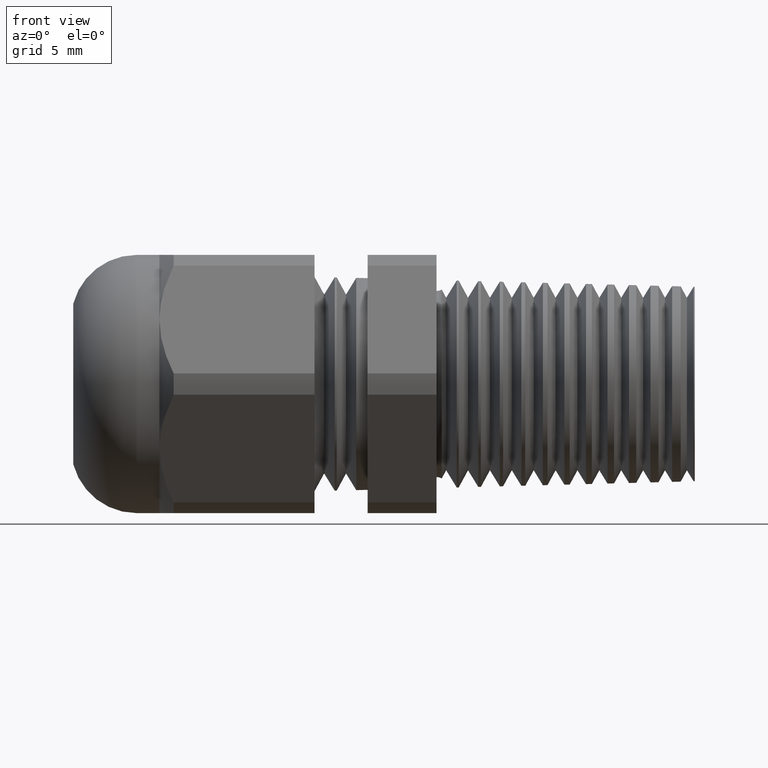
[diagram: clean part render]
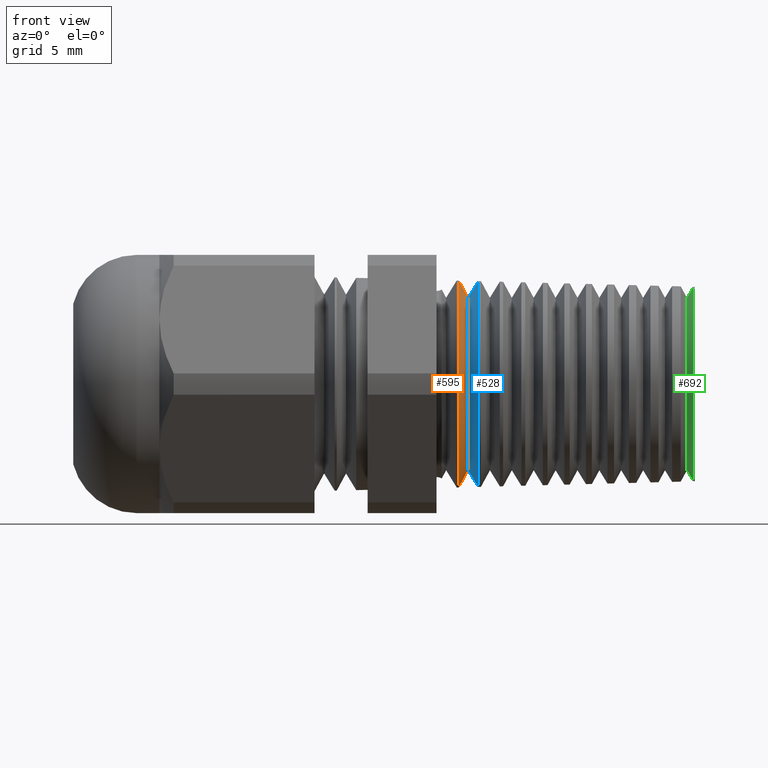
[diagram: same view with three faces highlighted in distinct colors, each labeled with its STEP entity id]
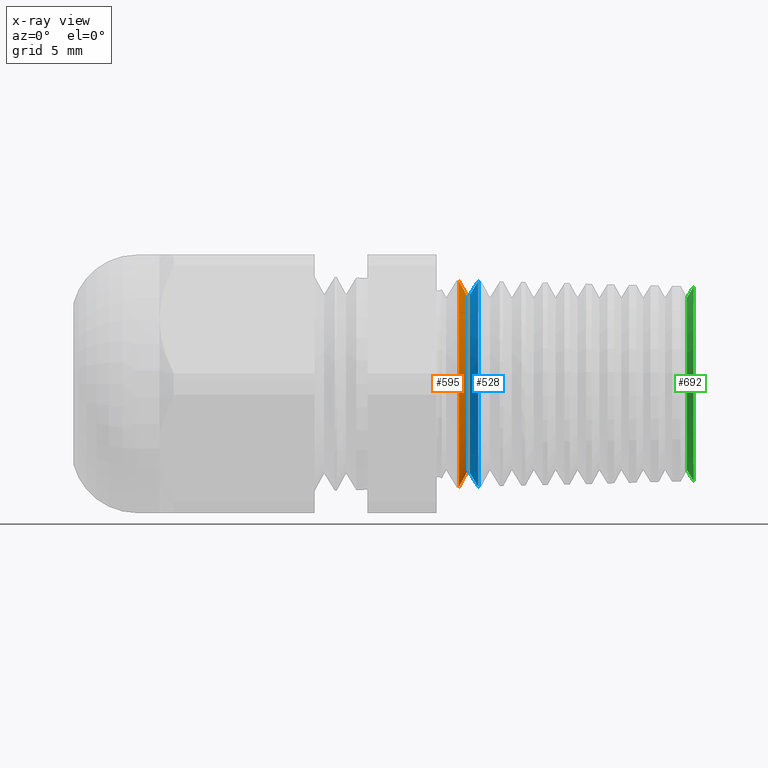
[diagram: x-ray of the same camera — body ghosted, the three highlighted faces saturated]
A machine part, front view with three faces highlighted in distinct colors.
The next image is the same camera in x-ray (body ghosted, the three faces saturated) — at least one of them is partly hidden behind the body in this view.
Their STEP definitions:

[orange] entity #595 — the highlighted conical surface has half-angle 61.5 deg.
#40 = EDGE_CURVE ( 'NONE', #53, #41, #1427, .T. ) ;
#41 = VERTEX_POINT ( 'NONE', #1418 ) ;
#53 = VERTEX_POINT ( 'NONE', #1453 ) ;
#54 = VERTEX_POINT ( 'NONE', #1452 ) ;
#69 = VERTEX_POINT ( 'NONE', #1490 ) ;
#71 = EDGE_CURVE ( 'NONE', #54, #69, #1489, .T. ) ;
#448 = EDGE_CURVE ( 'NONE', #69, #41, #2270, .T. ) ;
#522 = EDGE_LOOP ( 'NONE', ( #523, #524, #526, #527 ) ) ;
#523 = ORIENTED_EDGE ( 'NONE', *, *, #40, .F. ) ;
#524 = ORIENTED_EDGE ( 'NONE', *, *, #525, .F. ) ;
#525 = EDGE_CURVE ( 'NONE', #54, #53, #2378, .T. ) ;
#526 = ORIENTED_EDGE ( 'NONE', *, *, #71, .T. ) ;
#527 = ORIENTED_EDGE ( 'NONE', *, *, #448, .T. ) ;
#595 = ADVANCED_FACE ( 'NONE', ( #2477 ), #2472, .T. ) ;
#1418 = CARTESIAN_POINT ( 'NONE',  ( -0.2592788571705069200, 2.895435483383459100E-017, -0.2363706903464192500 ) ) ;
#1419 = DIRECTION ( 'NONE',  ( -0.4771587602596069600, 1.076240564057395700E-016, -0.8788171126619660500 ) ) ;
#1420 = VECTOR ( 'NONE', #1419, 39.37007874015748900 ) ;
#1421 = CARTESIAN_POINT ( 'NONE',  ( -0.2599999999999999500, 2.910971605690699300E-017, -0.2376988702144513000 ) ) ;
#1427 = LINE ( 'NONE', #1421, #1420 ) ;
#1452 = CARTESIAN_POINT ( 'NONE',  ( -0.2379609809054343500, 0.0000000000000000000, 0.1971080464893448000 ) ) ;
#1453 = CARTESIAN_POINT ( 'NONE',  ( -0.2379609809054343500, 2.654291737821781400E-017, -0.1971080464893448000 ) ) ;
#1486 = DIRECTION ( 'NONE',  ( -0.4771587602596069600, 0.0000000000000000000, 0.8788171126619660500 ) ) ;
#1487 = VECTOR ( 'NONE', #1486, 39.37007874015748900 ) ;
#1488 = CARTESIAN_POINT ( 'NONE',  ( -0.2599999999999999500, 0.0000000000000000000, 0.2376988702144513000 ) ) ;
#1489 = LINE ( 'NONE', #1488, #1487 ) ;
#1490 = CARTESIAN_POINT ( 'NONE',  ( -0.2592788571705069200, 0.0000000000000000000, 0.2363706903464192500 ) ) ;
#2266 = DIRECTION ( 'NONE',  ( 0.0000000000000000000, 0.0000000000000000000, 1.000000000000000000 ) ) ;
#2267 = DIRECTION ( 'NONE',  ( 1.000000000000000000, 0.0000000000000000000, 0.0000000000000000000 ) ) ;
#2268 = CARTESIAN_POINT ( 'NONE',  ( -0.2592788571705069200, 0.0000000000000000000, 0.0000000000000000000 ) ) ;
#2269 = AXIS2_PLACEMENT_3D ( 'NONE', #2268, #2267, #2266 ) ;
#2270 = CIRCLE ( 'NONE', #2269, 0.2363706903464192500 ) ;
#2374 = DIRECTION ( 'NONE',  ( 0.0000000000000000000, 0.0000000000000000000, -1.000000000000000000 ) ) ;
#2375 = DIRECTION ( 'NONE',  ( 1.000000000000000000, 0.0000000000000000000, 0.0000000000000000000 ) ) ;
#2376 = CARTESIAN_POINT ( 'NONE',  ( -0.2379609809054343500, 0.0000000000000000000, 0.0000000000000000000 ) ) ;
#2377 = AXIS2_PLACEMENT_3D ( 'NONE', #2376, #2375, #2374 ) ;
#2378 = CIRCLE ( 'NONE', #2377, 0.1971080464893448000 ) ;
#2467 = DIRECTION ( 'NONE',  ( 0.0000000000000000000, 0.0000000000000000000, 1.000000000000000000 ) ) ;
#2468 = DIRECTION ( 'NONE',  ( -1.000000000000000000, 0.0000000000000000000, 0.0000000000000000000 ) ) ;
#2469 = CARTESIAN_POINT ( 'NONE',  ( -0.2599999999999999500, 0.0000000000000000000, 0.0000000000000000000 ) ) ;
#2470 = AXIS2_PLACEMENT_3D ( 'NONE', #2469, #2468, #2467 ) ;
#2472 = CONICAL_SURFACE ( 'NONE', #2470, 0.2376988702144513000, 1.073377489976514300 ) ;
#2477 = FACE_OUTER_BOUND ( 'NONE', #522, .T. ) ;

[blue] entity #528 — the highlighted conical surface has half-angle 58.5 deg.
#33 = VERTEX_POINT ( 'NONE', #1433 ) ;
#35 = EDGE_CURVE ( 'NONE', #53, #33, #1432, .T. ) ;
#53 = VERTEX_POINT ( 'NONE', #1453 ) ;
#54 = VERTEX_POINT ( 'NONE', #1452 ) ;
#56 = EDGE_CURVE ( 'NONE', #54, #57, #1451, .T. ) ;
#57 = VERTEX_POINT ( 'NONE', #1447 ) ;
#521 = EDGE_CURVE ( 'NONE', #33, #57, #2383, .T. ) ;
#525 = EDGE_CURVE ( 'NONE', #54, #53, #2378, .T. ) ;
#528 = ADVANCED_FACE ( 'NONE', ( #2373 ), #2372, .T. ) ;
#529 = EDGE_LOOP ( 'NONE', ( #530, #531, #582, #583 ) ) ;
#530 = ORIENTED_EDGE ( 'NONE', *, *, #56, .F. ) ;
#531 = ORIENTED_EDGE ( 'NONE', *, *, #525, .T. ) ;
#582 = ORIENTED_EDGE ( 'NONE', *, *, #35, .T. ) ;
#583 = ORIENTED_EDGE ( 'NONE', *, *, #521, .T. ) ;
#1429 = DIRECTION ( 'NONE',  ( 0.5224985647159462500, 0.0000000000000000000, -0.8526401643540938400 ) ) ;
#1430 = VECTOR ( 'NONE', #1429, 39.37007874015748100 ) ;
#1431 = CARTESIAN_POINT ( 'NONE',  ( -0.2379609809054343500, 0.0000000000000000000, -0.1971080464893448000 ) ) ;
#1432 = LINE ( 'NONE', #1431, #1430 ) ;
#1433 = CARTESIAN_POINT ( 'NONE',  ( -0.2146174720380043300, 2.880383854911160300E-017, -0.2352011908181685900 ) ) ;
#1447 = CARTESIAN_POINT ( 'NONE',  ( -0.2146174720380043300, 0.0000000000000000000, 0.2352011908181685900 ) ) ;
#1448 = DIRECTION ( 'NONE',  ( 0.5224985647159462500, 1.044183048100714200E-016, 0.8526401643540938400 ) ) ;
#1449 = VECTOR ( 'NONE', #1448, 39.37007874015748100 ) ;
#1450 = CARTESIAN_POINT ( 'NONE',  ( -0.2379609809054343500, 2.413877382193637800E-017, 0.1971080464893448000 ) ) ;
#1451 = LINE ( 'NONE', #1450, #1449 ) ;
#1452 = CARTESIAN_POINT ( 'NONE',  ( -0.2379609809054343500, 0.0000000000000000000, 0.1971080464893448000 ) ) ;
#1453 = CARTESIAN_POINT ( 'NONE',  ( -0.2379609809054343500, 2.654291737821781400E-017, -0.1971080464893448000 ) ) ;
#2368 = DIRECTION ( 'NONE',  ( 0.0000000000000000000, 0.0000000000000000000, -1.000000000000000000 ) ) ;
#2369 = DIRECTION ( 'NONE',  ( 1.000000000000000000, 0.0000000000000000000, 0.0000000000000000000 ) ) ;
#2370 = CARTESIAN_POINT ( 'NONE',  ( -0.2379609809054343500, 0.0000000000000000000, 0.0000000000000000000 ) ) ;
#2371 = AXIS2_PLACEMENT_3D ( 'NONE', #2370, #2369, #2368 ) ;
#2372 = CONICAL_SURFACE ( 'NONE', #2371, 0.1971080464893448000, 1.021017612416685900 ) ;
#2373 = FACE_OUTER_BOUND ( 'NONE', #529, .T. ) ;
#2374 = DIRECTION ( 'NONE',  ( 0.0000000000000000000, 0.0000000000000000000, -1.000000000000000000 ) ) ;
#2375 = DIRECTION ( 'NONE',  ( 1.000000000000000000, 0.0000000000000000000, 0.0000000000000000000 ) ) ;
#2376 = CARTESIAN_POINT ( 'NONE',  ( -0.2379609809054343500, 0.0000000000000000000, 0.0000000000000000000 ) ) ;
#2377 = AXIS2_PLACEMENT_3D ( 'NONE', #2376, #2375, #2374 ) ;
#2378 = CIRCLE ( 'NONE', #2377, 0.1971080464893448000 ) ;
#2379 = DIRECTION ( 'NONE',  ( 0.0000000000000000000, 0.0000000000000000000, -1.000000000000000000 ) ) ;
#2380 = DIRECTION ( 'NONE',  ( -1.000000000000000000, 0.0000000000000000000, 0.0000000000000000000 ) ) ;
#2381 = CARTESIAN_POINT ( 'NONE',  ( -0.2146174720380043300, 0.0000000000000000000, 0.0000000000000000000 ) ) ;
#2382 = AXIS2_PLACEMENT_3D ( 'NONE', #2381, #2380, #2379 ) ;
#2383 = CIRCLE ( 'NONE', #2382, 0.2352011908181685900 ) ;

[green] entity #692 — the highlighted conical surface has half-angle 58.5 deg.
#512 = EDGE_CURVE ( 'NONE', #1137, #1130, #2398, .T. ) ;
#689 = EDGE_CURVE ( 'NONE', #1127, #1126, #2604, .T. ) ;
#692 = ADVANCED_FACE ( 'NONE', ( #2599 ), #2598, .T. ) ;
#693 = EDGE_LOOP ( 'NONE', ( #694, #695, #696, #697 ) ) ;
#694 = ORIENTED_EDGE ( 'NONE', *, *, #1129, .F. ) ;
#695 = ORIENTED_EDGE ( 'NONE', *, *, #689, .T. ) ;
#696 = ORIENTED_EDGE ( 'NONE', *, *, #1139, .T. ) ;
#697 = ORIENTED_EDGE ( 'NONE', *, *, #512, .T. ) ;
#1126 = VERTEX_POINT ( 'NONE', #3325 ) ;
#1127 = VERTEX_POINT ( 'NONE', #3324 ) ;
#1129 = EDGE_CURVE ( 'NONE', #1127, #1130, #3323, .T. ) ;
#1130 = VERTEX_POINT ( 'NONE', #3319 ) ;
#1137 = VERTEX_POINT ( 'NONE', #3307 ) ;
#1139 = EDGE_CURVE ( 'NONE', #1126, #1137, #3306, .T. ) ;
#2340 = CARTESIAN_POINT ( 'NONE',  ( 0.2774858670443515800, 0.0000000000000000000, 0.0000000000000000000 ) ) ;
#2395 = DIRECTION ( 'NONE',  ( 0.0000000000000000000, 0.0000000000000000000, -1.000000000000000000 ) ) ;
#2396 = DIRECTION ( 'NONE',  ( -1.000000000000000000, 0.0000000000000000000, 0.0000000000000000000 ) ) ;
#2397 = AXIS2_PLACEMENT_3D ( 'NONE', #2340, #2396, #2395 ) ;
#2398 = CIRCLE ( 'NONE', #2397, 0.2223150113770265000 ) ;
#2598 = CONICAL_SURFACE ( 'NONE', #2661, 0.1971080464893448000, 1.021017612416685900 ) ;
#2599 = FACE_OUTER_BOUND ( 'NONE', #693, .T. ) ;
#2600 = DIRECTION ( 'NONE',  ( 0.0000000000000000000, 0.0000000000000000000, -1.000000000000000000 ) ) ;
#2601 = DIRECTION ( 'NONE',  ( 1.000000000000000000, 0.0000000000000000000, 0.0000000000000000000 ) ) ;
#2602 = CARTESIAN_POINT ( 'NONE',  ( 0.2620390190945656700, 0.0000000000000000000, 0.0000000000000000000 ) ) ;
#2603 = AXIS2_PLACEMENT_3D ( 'NONE', #2602, #2601, #2600 ) ;
#2604 = CIRCLE ( 'NONE', #2603, 0.1971080464893448000 ) ;
#2657 = DIRECTION ( 'NONE',  ( 0.0000000000000000000, 0.0000000000000000000, -1.000000000000000000 ) ) ;
#2658 = DIRECTION ( 'NONE',  ( 1.000000000000000000, 0.0000000000000000000, 0.0000000000000000000 ) ) ;
#2659 = CARTESIAN_POINT ( 'NONE',  ( 0.2620390190945656700, 0.0000000000000000000, 0.0000000000000000000 ) ) ;
#2661 = AXIS2_PLACEMENT_3D ( 'NONE', #2659, #2658, #2657 ) ;
#3303 = DIRECTION ( 'NONE',  ( 0.5224985647159462500, 0.0000000000000000000, -0.8526401643540938400 ) ) ;
#3304 = VECTOR ( 'NONE', #3303, 39.37007874015748100 ) ;
#3305 = CARTESIAN_POINT ( 'NONE',  ( 0.2620390190945656700, 0.0000000000000000000, -0.1971080464893448000 ) ) ;
#3306 = LINE ( 'NONE', #3305, #3304 ) ;
#3307 = CARTESIAN_POINT ( 'NONE',  ( 0.2774858670443515800, 2.722573670852829300E-017, -0.2223150113770265000 ) ) ;
#3319 = CARTESIAN_POINT ( 'NONE',  ( 0.2774858670443515800, 0.0000000000000000000, 0.2223150113770265000 ) ) ;
#3320 = DIRECTION ( 'NONE',  ( 0.5224985647159462500, 1.044183048100714200E-016, 0.8526401643540938400 ) ) ;
#3321 = VECTOR ( 'NONE', #3320, 39.37007874015748100 ) ;
#3322 = CARTESIAN_POINT ( 'NONE',  ( 0.2620390190945656700, 2.413877382193637800E-017, 0.1971080464893448000 ) ) ;
#3323 = LINE ( 'NONE', #3322, #3321 ) ;
#3324 = CARTESIAN_POINT ( 'NONE',  ( 0.2620390190945656700, 0.0000000000000000000, 0.1971080464893448000 ) ) ;
#3325 = CARTESIAN_POINT ( 'NONE',  ( 0.2620390190945656700, 2.572964176617897200E-017, -0.1971080464893448000 ) ) ;